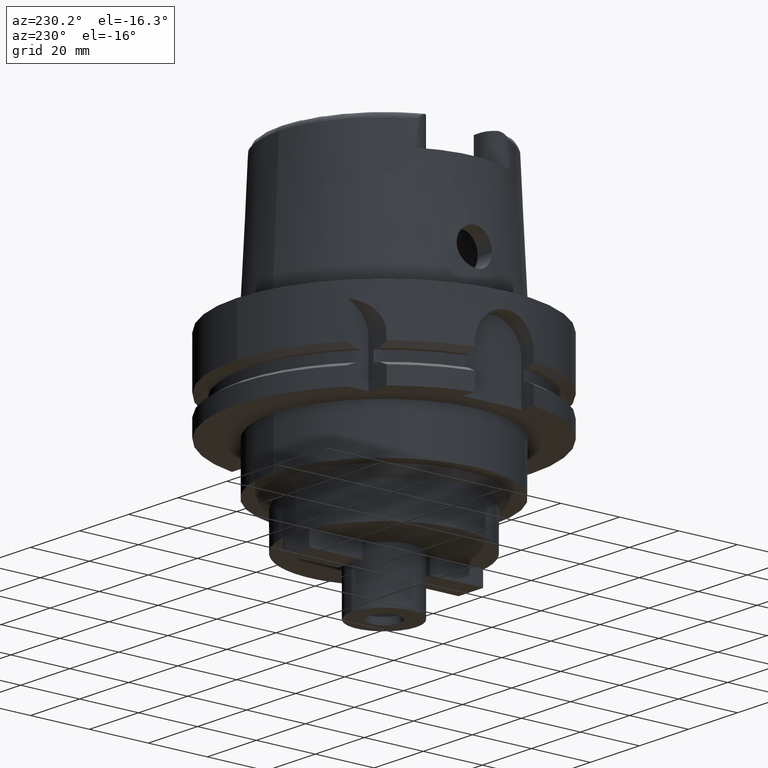
[diagram: clean part render]
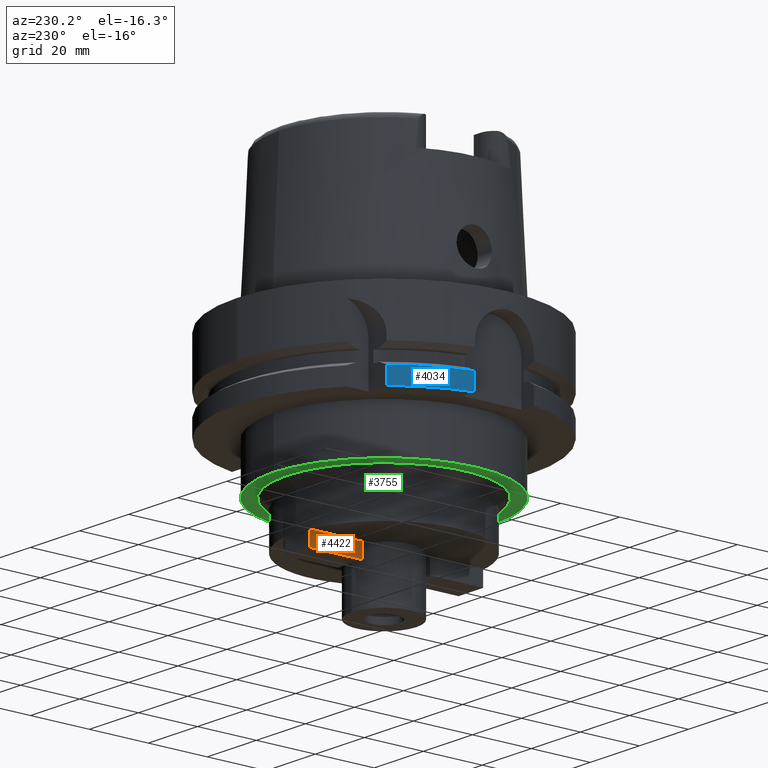
[diagram: same view with three faces highlighted in distinct colors, each labeled with its STEP entity id]
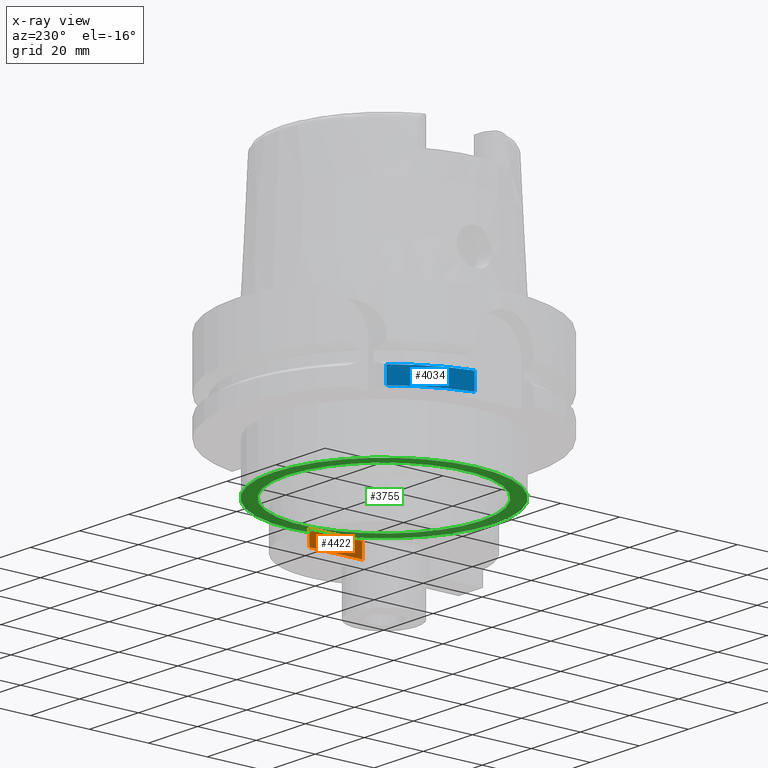
[diagram: x-ray of the same camera — body ghosted, the three highlighted faces saturated]
A machine part, auxiliary view with three faces highlighted in distinct colors.
The next image is the same camera in x-ray (body ghosted, the three faces saturated) — at least one of them is partly hidden behind the body in this view.
Their STEP definitions:

[orange] entity #4422 — the highlighted planar face has unit normal (1, 0, 0).
#1171=DIRECTION('',(0.E0,1.E0,0.E0));
#1172=VECTOR('',#1171,1.8E1);
#1173=CARTESIAN_POINT('',(-5.E0,1.15E1,-6.E1));
#1174=LINE('',#1173,#1172);
#2235=DIRECTION('',(0.E0,0.E0,1.E0));
#2236=VECTOR('',#2235,5.E0);
#2237=CARTESIAN_POINT('',(-5.E0,1.15E1,-6.5E1));
#2238=LINE('',#2237,#2236);
#2277=DIRECTION('',(0.E0,0.E0,-1.E0));
#2278=VECTOR('',#2277,5.E0);
#2279=CARTESIAN_POINT('',(-5.E0,2.95E1,-6.E1));
#2280=LINE('',#2279,#2278);
#2284=DIRECTION('',(0.E0,-1.E0,0.E0));
#2285=VECTOR('',#2284,1.8E1);
#2286=CARTESIAN_POINT('',(-5.E0,2.95E1,-6.5E1));
#2287=LINE('',#2286,#2285);
#2629=CARTESIAN_POINT('',(-5.E0,1.15E1,-6.E1));
#2630=CARTESIAN_POINT('',(-5.E0,2.95E1,-6.E1));
#2631=VERTEX_POINT('',#2629);
#2632=VERTEX_POINT('',#2630);
#2809=CARTESIAN_POINT('',(-5.E0,1.15E1,-6.5E1));
#2810=VERTEX_POINT('',#2809);
#2811=CARTESIAN_POINT('',(-5.E0,2.95E1,-6.5E1));
#2812=VERTEX_POINT('',#2811);
#4408=CARTESIAN_POINT('',(-5.E0,0.E0,0.E0));
#4409=DIRECTION('',(1.E0,0.E0,0.E0));
#4410=DIRECTION('',(0.E0,0.E0,1.E0));
#4411=AXIS2_PLACEMENT_3D('',#4408,#4409,#4410);
#4412=PLANE('',#4411);
#4413=ORIENTED_EDGE('',*,*,#3663,.F.);
#4415=ORIENTED_EDGE('',*,*,#4414,.F.);
#4417=ORIENTED_EDGE('',*,*,#4416,.F.);
#4419=ORIENTED_EDGE('',*,*,#4418,.F.);
#4420=EDGE_LOOP('',(#4413,#4415,#4417,#4419));
#4421=FACE_OUTER_BOUND('',#4420,.F.);
#3663=EDGE_CURVE('',#2631,#2632,#1174,.T.);
#4414=EDGE_CURVE('',#2810,#2631,#2238,.T.);
#4416=EDGE_CURVE('',#2812,#2810,#2287,.T.);
#4418=EDGE_CURVE('',#2632,#2812,#2280,.T.);
#4422=ADVANCED_FACE('',(#4421),#4412,.F.);

[blue] entity #4034 — the highlighted cylindrical surface (partial cylindrical patch) has radius 50 mm, axis along (0, 0, 1).
#1296=CARTESIAN_POINT('',(0.E0,0.E0,-2.9E1));
#1297=DIRECTION('',(0.E0,0.E0,1.E0));
#1298=DIRECTION('',(-7.765951326142E-1,6.3E-1,0.E0));
#1299=AXIS2_PLACEMENT_3D('',#1296,#1297,#1298);
#1549=DIRECTION('',(-1.164835666500E-7,-1.435883620959E-7,1.E0));
#1550=VECTOR('',#1549,5.752407739009E0);
#1551=CARTESIAN_POINT('',(-3.882975663071E1,3.15E1,-2.9E1));
#1552=LINE('',#1551,#1550);
#1556=DIRECTION('',(-8.399427413532E-14,0.E0,-1.E0));
#1557=VECTOR('',#1556,5.752404735809E0);
#1558=CARTESIAN_POINT('',(-4.898979485566E1,1.E1,-2.324759526419E1));
#1559=LINE('',#1558,#1557);
#2220=CARTESIAN_POINT('',(0.E0,0.E0,-2.324759526419E1));
#2221=DIRECTION('',(0.E0,0.E0,-1.E0));
#2222=DIRECTION('',(-9.797958971133E-1,2.E-1,0.E0));
#2223=AXIS2_PLACEMENT_3D('',#2220,#2221,#2222);
#2665=CARTESIAN_POINT('',(-3.882975663071E1,3.15E1,-2.9E1));
#2666=VERTEX_POINT('',#2665);
#2667=CARTESIAN_POINT('',(-4.898979485566E1,1.E1,-2.9E1));
#2668=VERTEX_POINT('',#2667);
#2711=CARTESIAN_POINT('',(-3.882975730077E1,3.149999917402E1,
-2.324759226099E1));
#2712=VERTEX_POINT('',#2711);
#2713=CARTESIAN_POINT('',(-4.898979485566E1,1.E1,-2.324759526419E1));
#2714=VERTEX_POINT('',#2713);
#4021=CARTESIAN_POINT('',(0.E0,0.E0,-8.44E1));
#4022=DIRECTION('',(0.E0,0.E0,1.E0));
#4023=DIRECTION('',(0.E0,1.E0,0.E0));
#4024=AXIS2_PLACEMENT_3D('',#4021,#4022,#4023);
#4025=CYLINDRICAL_SURFACE('',#4024,5.E1);
#4027=ORIENTED_EDGE('',*,*,#4026,.T.);
#4029=ORIENTED_EDGE('',*,*,#4028,.F.);
#4030=ORIENTED_EDGE('',*,*,#4001,.T.);
#4031=ORIENTED_EDGE('',*,*,#3793,.F.);
#4032=EDGE_LOOP('',(#4027,#4029,#4030,#4031));
#4033=FACE_OUTER_BOUND('',#4032,.F.);
#1300=CIRCLE('',#1299,5.E1);
#2224=CIRCLE('',#2223,5.E1);
#3793=EDGE_CURVE('',#2666,#2668,#1300,.T.);
#4001=EDGE_CURVE('',#2714,#2668,#1559,.T.);
#4026=EDGE_CURVE('',#2666,#2712,#1552,.T.);
#4028=EDGE_CURVE('',#2714,#2712,#2224,.T.);
#4034=ADVANCED_FACE('',(#4033),#4025,.T.);

[green] entity #3755 — the highlighted planar face has unit normal (0, 0, 1).
#1243=CARTESIAN_POINT('',(0.E0,0.E0,-4.5E1));
#1244=DIRECTION('',(0.E0,0.E0,1.E0));
#1245=DIRECTION('',(0.E0,-1.E0,0.E0));
#1246=AXIS2_PLACEMENT_3D('',#1243,#1244,#1245);
#1251=CARTESIAN_POINT('',(0.E0,0.E0,-4.5E1));
#1252=DIRECTION('',(0.E0,0.E0,1.E0));
#1253=DIRECTION('',(0.E0,1.E0,0.E0));
#1254=AXIS2_PLACEMENT_3D('',#1251,#1252,#1253);
#1259=CARTESIAN_POINT('',(0.E0,0.E0,-4.5E1));
#1260=DIRECTION('',(0.E0,0.E0,-1.E0));
#1261=DIRECTION('',(0.E0,-1.E0,0.E0));
#1262=AXIS2_PLACEMENT_3D('',#1259,#1260,#1261);
#1267=CARTESIAN_POINT('',(0.E0,0.E0,-4.5E1));
#1268=DIRECTION('',(0.E0,0.E0,-1.E0));
#1269=DIRECTION('',(0.E0,1.E0,0.E0));
#1270=AXIS2_PLACEMENT_3D('',#1267,#1268,#1269);
#2649=CARTESIAN_POINT('',(0.E0,3.3E1,-4.5E1));
#2650=VERTEX_POINT('',#2649);
#2651=CARTESIAN_POINT('',(0.E0,-3.3E1,-4.5E1));
#2652=VERTEX_POINT('',#2651);
#2653=CARTESIAN_POINT('',(0.E0,-3.75E1,-4.5E1));
#2654=CARTESIAN_POINT('',(0.E0,3.75E1,-4.5E1));
#2655=VERTEX_POINT('',#2653);
#2656=VERTEX_POINT('',#2654);
#3740=CARTESIAN_POINT('',(0.E0,0.E0,-4.5E1));
#3741=DIRECTION('',(0.E0,0.E0,1.E0));
#3742=DIRECTION('',(0.E0,1.E0,0.E0));
#3743=AXIS2_PLACEMENT_3D('',#3740,#3741,#3742);
#3744=PLANE('',#3743);
#3746=ORIENTED_EDGE('',*,*,#3745,.T.);
#3748=ORIENTED_EDGE('',*,*,#3747,.T.);
#3749=EDGE_LOOP('',(#3746,#3748));
#3750=FACE_OUTER_BOUND('',#3749,.F.);
#3751=ORIENTED_EDGE('',*,*,#3719,.T.);
#3752=ORIENTED_EDGE('',*,*,#3735,.T.);
#3753=EDGE_LOOP('',(#3751,#3752));
#3754=FACE_BOUND('',#3753,.F.);
#1247=CIRCLE('',#1246,3.75E1);
#1255=CIRCLE('',#1254,3.75E1);
#1263=CIRCLE('',#1262,3.3E1);
#1271=CIRCLE('',#1270,3.3E1);
#3719=EDGE_CURVE('',#2652,#2650,#1263,.T.);
#3735=EDGE_CURVE('',#2650,#2652,#1271,.T.);
#3745=EDGE_CURVE('',#2655,#2656,#1247,.T.);
#3747=EDGE_CURVE('',#2656,#2655,#1255,.T.);
#3755=ADVANCED_FACE('',(#3750,#3754),#3744,.F.);